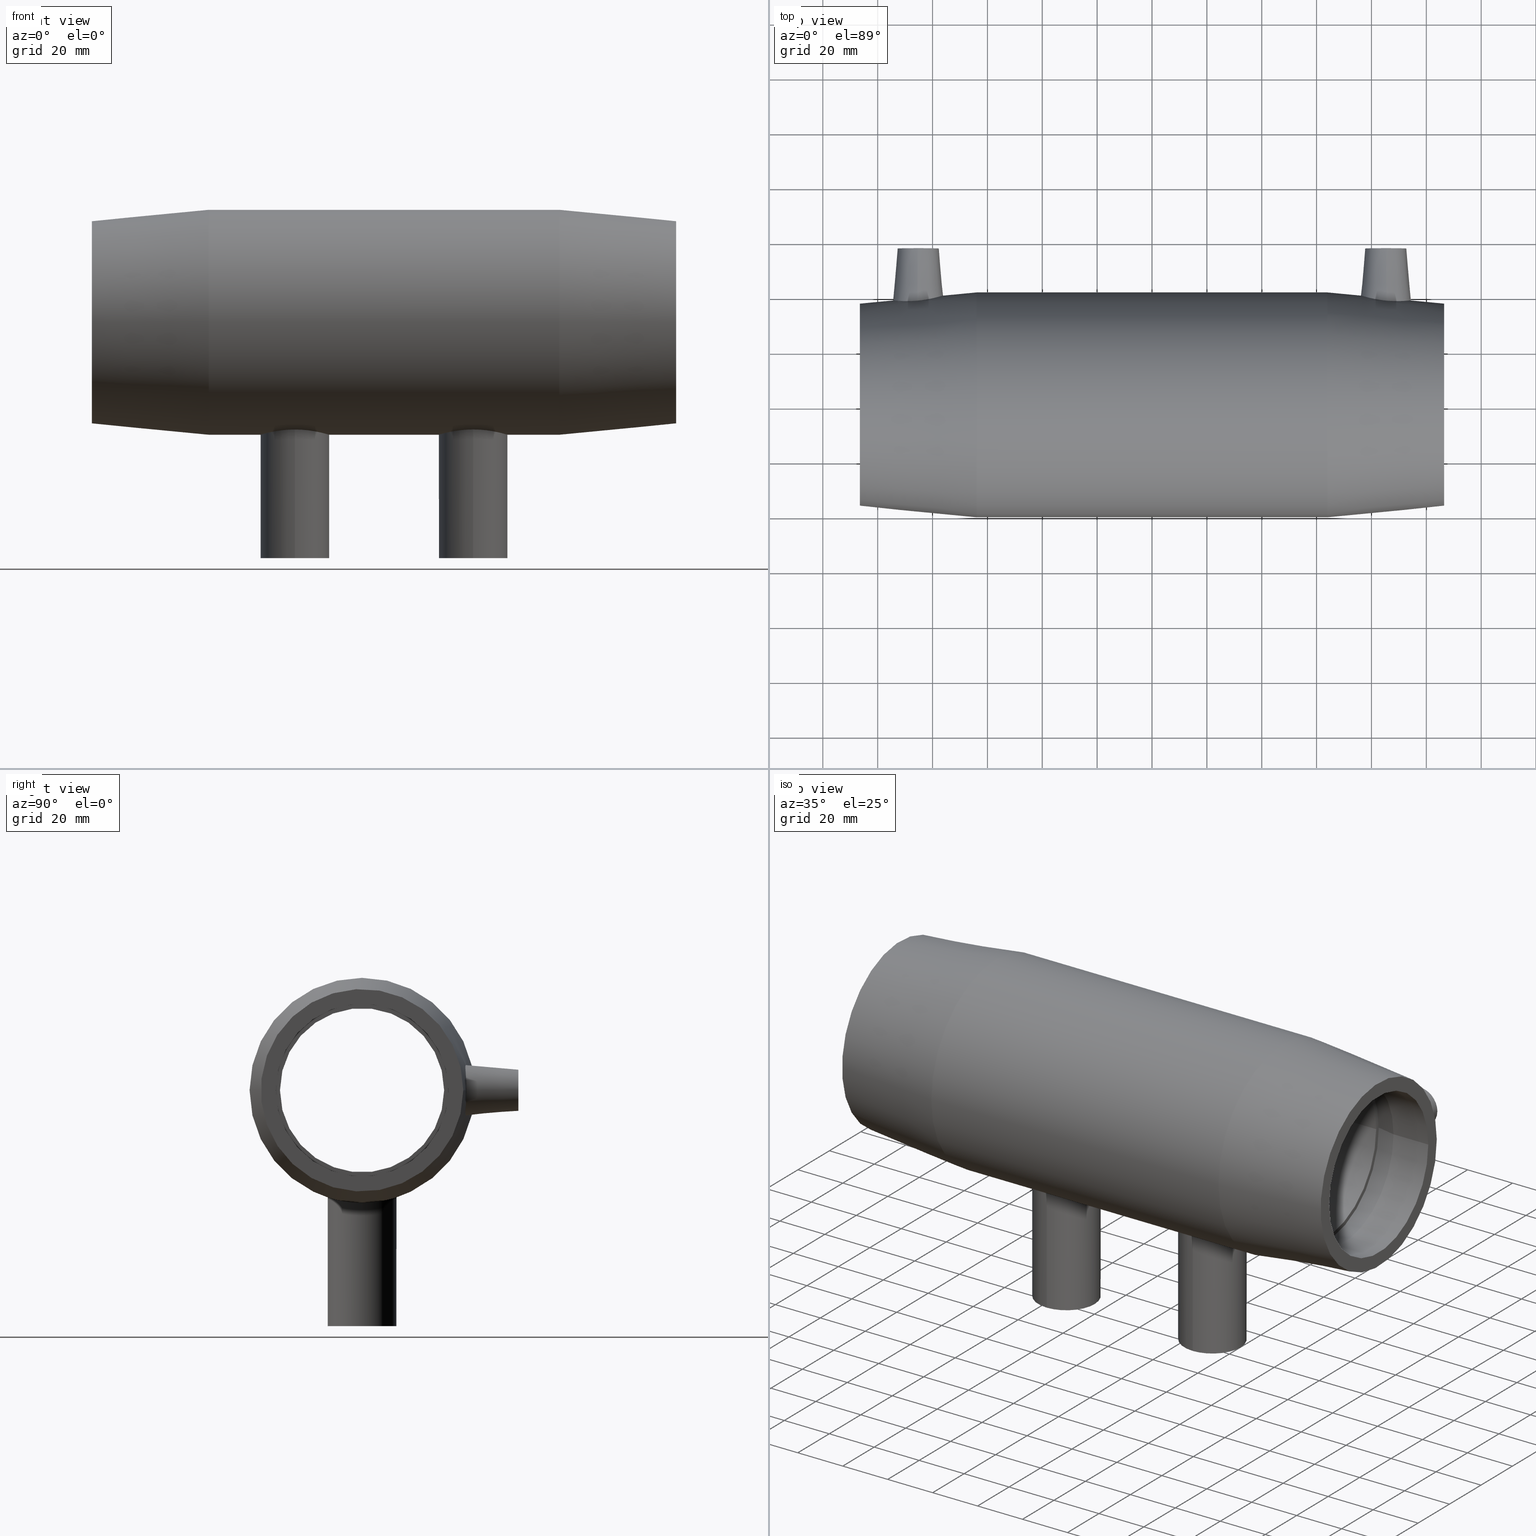
[diagram: canonical four-view strip — front | top / right | iso, engineering-drawing reading convention]
A machine part, canonical four-view strip (front | top / right | iso — engineering-drawing reading convention). The complete STEP part file that produces these views, byte-faithful:
ISO-10303-21;
HEADER;
/* Generated by software containing ST-Developer
 * from STEP Tools, Inc. (www.steptools.com) 
 */

FILE_DESCRIPTION(
/* description */ ('PLASSON REDUCING TEE WITH TWO OUTLETS 63X25X25X63'),

/* implementation_level */ '2;1');

FILE_NAME(
/* name */ 
'C:\\Dropbox\\KIMPROJECTS-Inventor\\99-16-3568-Processing\\ElectroFusi
on Fittings\\492404\\492404063025.ipt.stp',
/* time_stamp */ '2017-11-06T09:14:40+02:00',
/* author */ ('KIM'),
/* organization */ (''),
/* preprocessor_version */ 'ST-DEVELOPER v15.6',
/* originating_system */ 'Autodesk Inventor 2015',
/* authorisation */ '');

FILE_SCHEMA (('AUTOMOTIVE_DESIGN { 1 0 10303 214 3 1 1 }'));
ENDSEC;

DATA;
#10=MECHANICAL_DESIGN_GEOMETRIC_PRESENTATION_REPRESENTATION('',(#13),#911);
#11=SHAPE_REPRESENTATION_RELATIONSHIP('SRR','None',#920,#12);
#12=ADVANCED_BREP_SHAPE_REPRESENTATION($,(#14),#910);
#13=STYLED_ITEM('',(#929),#14);
#14=MANIFOLD_SOLID_BREP('Solid1',#407);
#15=CONICAL_SURFACE('',#437,7.5,5.);
#16=CONICAL_SURFACE('',#440,7.5,5.);
#17=CONICAL_SURFACE('',#444,38.95,5.49745009090748);
#18=CONICAL_SURFACE('',#450,32.3218853717908,12.);
#19=CONICAL_SURFACE('',#466,32.3218853717908,12.);
#20=CONICAL_SURFACE('',#472,38.95,5.49745009090749);
#21=PLANE('',#415);
#22=PLANE('',#418);
#23=PLANE('',#419);
#24=PLANE('',#426);
#25=PLANE('',#427);
#26=PLANE('',#434);
#27=PLANE('',#435);
#28=PLANE('',#439);
#29=PLANE('',#446);
#30=PLANE('',#452);
#31=PLANE('',#456);
#32=PLANE('',#460);
#33=PLANE('',#464);
#34=PLANE('',#470);
#35=FACE_BOUND('',#138,.T.);
#36=FACE_BOUND('',#140,.T.);
#37=FACE_BOUND('',#142,.T.);
#38=FACE_BOUND('',#144,.T.);
#39=FACE_BOUND('',#146,.T.);
#40=FACE_BOUND('',#148,.T.);
#41=FACE_BOUND('',#151,.T.);
#42=FACE_BOUND('',#153,.T.);
#43=FACE_BOUND('',#155,.T.);
#44=FACE_BOUND('',#158,.T.);
#45=FACE_BOUND('',#160,.T.);
#46=FACE_BOUND('',#162,.T.);
#47=FACE_BOUND('',#164,.T.);
#48=FACE_BOUND('',#166,.T.);
#49=FACE_BOUND('',#168,.T.);
#50=FACE_BOUND('',#170,.T.);
#51=FACE_BOUND('',#172,.T.);
#52=FACE_BOUND('',#173,.T.);
#53=FACE_BOUND('',#174,.T.);
#54=FACE_BOUND('',#176,.T.);
#55=FACE_BOUND('',#177,.T.);
#56=FACE_BOUND('',#179,.T.);
#57=FACE_BOUND('',#181,.T.);
#58=FACE_BOUND('',#183,.T.);
#59=FACE_BOUND('',#185,.T.);
#60=FACE_BOUND('',#187,.T.);
#61=FACE_BOUND('',#189,.T.);
#62=FACE_BOUND('',#191,.T.);
#63=FACE_BOUND('',#192,.T.);
#64=FACE_BOUND('',#193,.T.);
#65=FACE_BOUND('',#195,.T.);
#66=FACE_BOUND('',#197,.T.);
#67=FACE_BOUND('',#199,.T.);
#68=FACE_BOUND('',#201,.T.);
#69=FACE_BOUND('',#203,.T.);
#70=FACE_BOUND('',#205,.T.);
#71=FACE_BOUND('',#207,.T.);
#72=FACE_BOUND('',#208,.T.);
#73=CIRCLE('',#410,10.);
#74=CIRCLE('',#412,10.);
#75=CIRCLE('',#414,12.5);
#76=CIRCLE('',#417,12.5);
#77=CIRCLE('',#420,2.);
#78=CIRCLE('',#422,2.);
#79=CIRCLE('',#424,5.);
#80=CIRCLE('',#425,5.);
#81=CIRCLE('',#428,2.);
#82=CIRCLE('',#430,2.);
#83=CIRCLE('',#432,5.);
#84=CIRCLE('',#433,5.);
#85=CIRCLE('',#436,7.5);
#86=CIRCLE('',#438,7.5);
#87=CIRCLE('',#442,41.);
#88=CIRCLE('',#443,41.);
#89=CIRCLE('',#445,36.9);
#90=CIRCLE('',#447,31.5);
#91=CIRCLE('',#449,31.5);
#92=CIRCLE('',#451,33.1437707435815);
#93=CIRCLE('',#453,31.5);
#94=CIRCLE('',#455,31.5);
#95=CIRCLE('',#457,29.925);
#96=CIRCLE('',#459,29.925);
#97=CIRCLE('',#461,31.5);
#98=CIRCLE('',#463,31.5);
#99=CIRCLE('',#465,33.1437707435815);
#100=CIRCLE('',#467,31.5);
#101=CIRCLE('',#469,31.5);
#102=CIRCLE('',#471,36.9);
#103=FACE_OUTER_BOUND('',#137,.T.);
#104=FACE_OUTER_BOUND('',#139,.T.);
#105=FACE_OUTER_BOUND('',#141,.T.);
#106=FACE_OUTER_BOUND('',#143,.T.);
#107=FACE_OUTER_BOUND('',#145,.T.);
#108=FACE_OUTER_BOUND('',#147,.T.);
#109=FACE_OUTER_BOUND('',#149,.T.);
#110=FACE_OUTER_BOUND('',#150,.T.);
#111=FACE_OUTER_BOUND('',#152,.T.);
#112=FACE_OUTER_BOUND('',#154,.T.);
#113=FACE_OUTER_BOUND('',#156,.T.);
#114=FACE_OUTER_BOUND('',#157,.T.);
#115=FACE_OUTER_BOUND('',#159,.T.);
#116=FACE_OUTER_BOUND('',#161,.T.);
#117=FACE_OUTER_BOUND('',#163,.T.);
#118=FACE_OUTER_BOUND('',#165,.T.);
#119=FACE_OUTER_BOUND('',#167,.T.);
#120=FACE_OUTER_BOUND('',#169,.T.);
#121=FACE_OUTER_BOUND('',#171,.T.);
#122=FACE_OUTER_BOUND('',#175,.T.);
#123=FACE_OUTER_BOUND('',#178,.T.);
#124=FACE_OUTER_BOUND('',#180,.T.);
#125=FACE_OUTER_BOUND('',#182,.T.);
#126=FACE_OUTER_BOUND('',#184,.T.);
#127=FACE_OUTER_BOUND('',#186,.T.);
#128=FACE_OUTER_BOUND('',#188,.T.);
#129=FACE_OUTER_BOUND('',#190,.T.);
#130=FACE_OUTER_BOUND('',#194,.T.);
#131=FACE_OUTER_BOUND('',#196,.T.);
#132=FACE_OUTER_BOUND('',#198,.T.);
#133=FACE_OUTER_BOUND('',#200,.T.);
#134=FACE_OUTER_BOUND('',#202,.T.);
#135=FACE_OUTER_BOUND('',#204,.T.);
#136=FACE_OUTER_BOUND('',#206,.T.);
#137=EDGE_LOOP('',(#287));
#138=EDGE_LOOP('',(#288));
#139=EDGE_LOOP('',(#289));
#140=EDGE_LOOP('',(#290));
#141=EDGE_LOOP('',(#291));
#142=EDGE_LOOP('',(#292));
#143=EDGE_LOOP('',(#293));
#144=EDGE_LOOP('',(#294));
#145=EDGE_LOOP('',(#295));
#146=EDGE_LOOP('',(#296));
#147=EDGE_LOOP('',(#297));
#148=EDGE_LOOP('',(#298));
#149=EDGE_LOOP('',(#299));
#150=EDGE_LOOP('',(#300));
#151=EDGE_LOOP('',(#301));
#152=EDGE_LOOP('',(#302));
#153=EDGE_LOOP('',(#303));
#154=EDGE_LOOP('',(#304));
#155=EDGE_LOOP('',(#305));
#156=EDGE_LOOP('',(#306));
#157=EDGE_LOOP('',(#307));
#158=EDGE_LOOP('',(#308));
#159=EDGE_LOOP('',(#309));
#160=EDGE_LOOP('',(#310));
#161=EDGE_LOOP('',(#311));
#162=EDGE_LOOP('',(#312));
#163=EDGE_LOOP('',(#313));
#164=EDGE_LOOP('',(#314));
#165=EDGE_LOOP('',(#315));
#166=EDGE_LOOP('',(#316));
#167=EDGE_LOOP('',(#317));
#168=EDGE_LOOP('',(#318));
#169=EDGE_LOOP('',(#319));
#170=EDGE_LOOP('',(#320));
#171=EDGE_LOOP('',(#321));
#172=EDGE_LOOP('',(#322));
#173=EDGE_LOOP('',(#323));
#174=EDGE_LOOP('',(#324));
#175=EDGE_LOOP('',(#325));
#176=EDGE_LOOP('',(#326));
#177=EDGE_LOOP('',(#327));
#178=EDGE_LOOP('',(#328));
#179=EDGE_LOOP('',(#329));
#180=EDGE_LOOP('',(#330));
#181=EDGE_LOOP('',(#331));
#182=EDGE_LOOP('',(#332));
#183=EDGE_LOOP('',(#333));
#184=EDGE_LOOP('',(#334));
#185=EDGE_LOOP('',(#335));
#186=EDGE_LOOP('',(#336));
#187=EDGE_LOOP('',(#337));
#188=EDGE_LOOP('',(#338));
#189=EDGE_LOOP('',(#339));
#190=EDGE_LOOP('',(#340));
#191=EDGE_LOOP('',(#341));
#192=EDGE_LOOP('',(#342));
#193=EDGE_LOOP('',(#343));
#194=EDGE_LOOP('',(#344));
#195=EDGE_LOOP('',(#345));
#196=EDGE_LOOP('',(#346));
#197=EDGE_LOOP('',(#347));
#198=EDGE_LOOP('',(#348));
#199=EDGE_LOOP('',(#349));
#200=EDGE_LOOP('',(#350));
#201=EDGE_LOOP('',(#351));
#202=EDGE_LOOP('',(#352));
#203=EDGE_LOOP('',(#353));
#204=EDGE_LOOP('',(#354));
#205=EDGE_LOOP('',(#355));
#206=EDGE_LOOP('',(#356));
#207=EDGE_LOOP('',(#357));
#208=EDGE_LOOP('',(#358));
#209=B_SPLINE_CURVE_WITH_KNOTS('',3,(#606,#607,#608,#609,#610,#611,#612,
#613,#614,#615,#616,#617,#618,#619,#620,#621,#622,#623,#624,#625,#626,#627,
#628,#629,#630,#631,#632,#633,#634,#635,#636,#637,#638,#639),
 .UNSPECIFIED.,.T.,.F.,(4,2,2,2,2,2,2,2,2,2,2,2,2,2,2,2,4),(0.,0.379911126478915,
0.75982225295783,1.1395394310904,1.51925660922297,1.89912706346379,2.27899751770461,
2.6589677503823,3.03893798305998,3.41890821573767,3.79887844841535,4.17874890265617,
4.55861935689699,4.93830599981475,5.31799264273251,5.69793431648639,6.07787599024027),
 .UNSPECIFIED.);
#210=B_SPLINE_CURVE_WITH_KNOTS('',3,(#644,#645,#646,#647,#648,#649,#650,
#651,#652,#653,#654,#655,#656,#657,#658,#659,#660,#661,#662,#663,#664,#665,
#666,#667,#668,#669,#670,#671,#672,#673,#674,#675,#676,#677),
 .UNSPECIFIED.,.T.,.F.,(4,2,2,2,2,2,2,2,2,2,2,2,2,2,2,2,4),(0.,0.379955940291765,
0.75991188058353,1.13968972297488,1.51946756536623,1.89924540775757,2.27902325014892,
2.65897919044069,3.03893513073245,3.41889107102422,3.79884701131598,4.17862485370733,
4.55840269609868,4.93818053849003,5.31795838088138,5.69791432117314,6.07787026146491),
 .UNSPECIFIED.);
#211=B_SPLINE_CURVE_WITH_KNOTS('',3,(#684,#685,#686,#687,#688,#689,#690,
#691,#692,#693,#694,#695,#696,#697,#698,#699,#700,#701,#702,#703,#704,#705,
#706,#707,#708,#709,#710,#711,#712,#713,#714,#715,#716,#717),
 .UNSPECIFIED.,.T.,.F.,(4,2,2,2,2,2,2,2,2,2,2,2,2,2,2,2,4),(0.,0.474199388686049,
0.948398777372098,1.4223826141883,1.8963664510045,2.37050207170436,2.84463769240422,
3.31885910039788,3.79308050839154,4.2673019163852,4.74152332437886,5.21565894507872,
5.68979456577858,6.16377840259478,6.63776223941098,7.11196162809703,7.58616101678308),
 .UNSPECIFIED.);
#212=B_SPLINE_CURVE_WITH_KNOTS('',3,(#723,#724,#725,#726,#727,#728,#729,
#730,#731,#732,#733,#734,#735,#736,#737,#738,#739,#740,#741,#742,#743,#744,
#745,#746,#747,#748,#749,#750,#751,#752,#753,#754,#755,#756),
 .UNSPECIFIED.,.T.,.F.,(4,2,2,2,2,2,2,2,2,2,2,2,2,2,2,2,4),(0.,0.474210395921348,
0.948420791842696,1.42248005839744,1.89653932495219,2.37059859150694,2.84465785806169,
3.31886825398304,3.79307864990438,4.26728904582573,4.74149944174708,5.21555870830183,
5.68961797485658,6.16367724141132,6.63773650796607,7.11194690388742,7.58615729980877),
 .UNSPECIFIED.);
#213=B_SPLINE_CURVE_WITH_KNOTS('',3,(#789,#790,#791,#792,#793,#794,#795,
#796,#797,#798,#799,#800,#801,#802,#803,#804,#805,#806,#807,#808,#809,#810,
#811,#812,#813,#814,#815,#816,#817,#818,#819,#820,#821,#822),
 .UNSPECIFIED.,.T.,.F.,(4,2,2,2,2,2,2,2,2,2,2,2,2,2,2,2,4),(0.,0.35602209679449,
0.71204419358898,1.06182628477897,1.41160837596895,1.76139046715894,2.11117255834893,
2.46719465514342,2.82321675193791,3.16146447122567,3.49971219051343,3.83980134969256,
4.17989050887169,4.51997966805081,4.86006882722994,5.1983165465177,5.53656426580547),
 .UNSPECIFIED.);
#214=B_SPLINE_CURVE_WITH_KNOTS('',3,(#826,#827,#828,#829,#830,#831,#832,
#833,#834,#835,#836,#837,#838,#839,#840,#841,#842,#843,#844,#845,#846,#847,
#848,#849,#850,#851,#852,#853,#854,#855,#856,#857,#858,#859),
 .UNSPECIFIED.,.T.,.F.,(4,2,2,2,2,2,2,2,2,2,2,2,2,2,2,2,4),(0.,0.338247719287762,
0.676495438575523,1.01658459775465,1.35667375693378,1.69676291611291,2.03685207529204,
2.3750997945798,2.71334751386756,3.06936961066205,3.42539170745654,3.77517379864653,
4.12495588983651,4.4747379810265,4.82452007221649,5.18054216901098,5.53656426580547),
 .UNSPECIFIED.);
#215=VERTEX_POINT('',#605);
#216=VERTEX_POINT('',#640);
#217=VERTEX_POINT('',#643);
#218=VERTEX_POINT('',#678);
#219=VERTEX_POINT('',#681);
#220=VERTEX_POINT('',#683);
#221=VERTEX_POINT('',#720);
#222=VERTEX_POINT('',#722);
#223=VERTEX_POINT('',#759);
#224=VERTEX_POINT('',#762);
#225=VERTEX_POINT('',#765);
#226=VERTEX_POINT('',#767);
#227=VERTEX_POINT('',#771);
#228=VERTEX_POINT('',#774);
#229=VERTEX_POINT('',#777);
#230=VERTEX_POINT('',#779);
#231=VERTEX_POINT('',#783);
#232=VERTEX_POINT('',#786);
#233=VERTEX_POINT('',#788);
#234=VERTEX_POINT('',#825);
#235=VERTEX_POINT('',#861);
#236=VERTEX_POINT('',#863);
#237=VERTEX_POINT('',#866);
#238=VERTEX_POINT('',#869);
#239=VERTEX_POINT('',#872);
#240=VERTEX_POINT('',#875);
#241=VERTEX_POINT('',#878);
#242=VERTEX_POINT('',#881);
#243=VERTEX_POINT('',#884);
#244=VERTEX_POINT('',#887);
#245=VERTEX_POINT('',#890);
#246=VERTEX_POINT('',#893);
#247=VERTEX_POINT('',#896);
#248=VERTEX_POINT('',#899);
#249=VERTEX_POINT('',#902);
#250=VERTEX_POINT('',#905);
#251=EDGE_CURVE('',#215,#215,#209,.T.);
#252=EDGE_CURVE('',#216,#216,#73,.T.);
#253=EDGE_CURVE('',#217,#217,#210,.T.);
#254=EDGE_CURVE('',#218,#218,#74,.T.);
#255=EDGE_CURVE('',#219,#219,#75,.T.);
#256=EDGE_CURVE('',#220,#220,#211,.T.);
#257=EDGE_CURVE('',#221,#221,#76,.T.);
#258=EDGE_CURVE('',#222,#222,#212,.T.);
#259=EDGE_CURVE('',#223,#223,#77,.T.);
#260=EDGE_CURVE('',#224,#224,#78,.T.);
#261=EDGE_CURVE('',#225,#225,#79,.T.);
#262=EDGE_CURVE('',#226,#226,#80,.T.);
#263=EDGE_CURVE('',#227,#227,#81,.T.);
#264=EDGE_CURVE('',#228,#228,#82,.T.);
#265=EDGE_CURVE('',#229,#229,#83,.T.);
#266=EDGE_CURVE('',#230,#230,#84,.T.);
#267=EDGE_CURVE('',#231,#231,#85,.T.);
#268=EDGE_CURVE('',#232,#232,#86,.T.);
#269=EDGE_CURVE('',#233,#233,#213,.T.);
#270=EDGE_CURVE('',#234,#234,#214,.T.);
#271=EDGE_CURVE('',#235,#235,#87,.T.);
#272=EDGE_CURVE('',#236,#236,#88,.T.);
#273=EDGE_CURVE('',#237,#237,#89,.T.);
#274=EDGE_CURVE('',#238,#238,#90,.T.);
#275=EDGE_CURVE('',#239,#239,#91,.T.);
#276=EDGE_CURVE('',#240,#240,#92,.T.);
#277=EDGE_CURVE('',#241,#241,#93,.T.);
#278=EDGE_CURVE('',#242,#242,#94,.T.);
#279=EDGE_CURVE('',#243,#243,#95,.T.);
#280=EDGE_CURVE('',#244,#244,#96,.T.);
#281=EDGE_CURVE('',#245,#245,#97,.T.);
#282=EDGE_CURVE('',#246,#246,#98,.T.);
#283=EDGE_CURVE('',#247,#247,#99,.T.);
#284=EDGE_CURVE('',#248,#248,#100,.T.);
#285=EDGE_CURVE('',#249,#249,#101,.T.);
#286=EDGE_CURVE('',#250,#250,#102,.T.);
#287=ORIENTED_EDGE('',*,*,#251,.F.);
#288=ORIENTED_EDGE('',*,*,#252,.F.);
#289=ORIENTED_EDGE('',*,*,#253,.F.);
#290=ORIENTED_EDGE('',*,*,#254,.F.);
#291=ORIENTED_EDGE('',*,*,#255,.F.);
#292=ORIENTED_EDGE('',*,*,#256,.F.);
#293=ORIENTED_EDGE('',*,*,#255,.T.);
#294=ORIENTED_EDGE('',*,*,#252,.T.);
#295=ORIENTED_EDGE('',*,*,#257,.F.);
#296=ORIENTED_EDGE('',*,*,#258,.F.);
#297=ORIENTED_EDGE('',*,*,#257,.T.);
#298=ORIENTED_EDGE('',*,*,#254,.T.);
#299=ORIENTED_EDGE('',*,*,#259,.F.);
#300=ORIENTED_EDGE('',*,*,#259,.T.);
#301=ORIENTED_EDGE('',*,*,#260,.F.);
#302=ORIENTED_EDGE('',*,*,#261,.F.);
#303=ORIENTED_EDGE('',*,*,#262,.F.);
#304=ORIENTED_EDGE('',*,*,#261,.T.);
#305=ORIENTED_EDGE('',*,*,#260,.T.);
#306=ORIENTED_EDGE('',*,*,#263,.F.);
#307=ORIENTED_EDGE('',*,*,#263,.T.);
#308=ORIENTED_EDGE('',*,*,#264,.T.);
#309=ORIENTED_EDGE('',*,*,#265,.T.);
#310=ORIENTED_EDGE('',*,*,#266,.F.);
#311=ORIENTED_EDGE('',*,*,#265,.F.);
#312=ORIENTED_EDGE('',*,*,#264,.F.);
#313=ORIENTED_EDGE('',*,*,#267,.F.);
#314=ORIENTED_EDGE('',*,*,#266,.T.);
#315=ORIENTED_EDGE('',*,*,#268,.F.);
#316=ORIENTED_EDGE('',*,*,#269,.F.);
#317=ORIENTED_EDGE('',*,*,#268,.T.);
#318=ORIENTED_EDGE('',*,*,#262,.T.);
#319=ORIENTED_EDGE('',*,*,#267,.T.);
#320=ORIENTED_EDGE('',*,*,#270,.F.);
#321=ORIENTED_EDGE('',*,*,#271,.F.);
#322=ORIENTED_EDGE('',*,*,#256,.T.);
#323=ORIENTED_EDGE('',*,*,#258,.T.);
#324=ORIENTED_EDGE('',*,*,#272,.T.);
#325=ORIENTED_EDGE('',*,*,#273,.F.);
#326=ORIENTED_EDGE('',*,*,#269,.T.);
#327=ORIENTED_EDGE('',*,*,#271,.T.);
#328=ORIENTED_EDGE('',*,*,#273,.T.);
#329=ORIENTED_EDGE('',*,*,#274,.F.);
#330=ORIENTED_EDGE('',*,*,#275,.F.);
#331=ORIENTED_EDGE('',*,*,#274,.T.);
#332=ORIENTED_EDGE('',*,*,#276,.F.);
#333=ORIENTED_EDGE('',*,*,#275,.T.);
#334=ORIENTED_EDGE('',*,*,#276,.T.);
#335=ORIENTED_EDGE('',*,*,#277,.F.);
#336=ORIENTED_EDGE('',*,*,#278,.F.);
#337=ORIENTED_EDGE('',*,*,#277,.T.);
#338=ORIENTED_EDGE('',*,*,#278,.T.);
#339=ORIENTED_EDGE('',*,*,#279,.F.);
#340=ORIENTED_EDGE('',*,*,#280,.F.);
#341=ORIENTED_EDGE('',*,*,#251,.T.);
#342=ORIENTED_EDGE('',*,*,#253,.T.);
#343=ORIENTED_EDGE('',*,*,#279,.T.);
#344=ORIENTED_EDGE('',*,*,#281,.F.);
#345=ORIENTED_EDGE('',*,*,#280,.T.);
#346=ORIENTED_EDGE('',*,*,#282,.F.);
#347=ORIENTED_EDGE('',*,*,#281,.T.);
#348=ORIENTED_EDGE('',*,*,#283,.F.);
#349=ORIENTED_EDGE('',*,*,#282,.T.);
#350=ORIENTED_EDGE('',*,*,#284,.F.);
#351=ORIENTED_EDGE('',*,*,#283,.T.);
#352=ORIENTED_EDGE('',*,*,#285,.F.);
#353=ORIENTED_EDGE('',*,*,#284,.T.);
#354=ORIENTED_EDGE('',*,*,#286,.F.);
#355=ORIENTED_EDGE('',*,*,#285,.T.);
#356=ORIENTED_EDGE('',*,*,#272,.F.);
#357=ORIENTED_EDGE('',*,*,#270,.T.);
#358=ORIENTED_EDGE('',*,*,#286,.T.);
#359=CYLINDRICAL_SURFACE('',#409,10.);
#360=CYLINDRICAL_SURFACE('',#411,10.);
#361=CYLINDRICAL_SURFACE('',#413,12.5);
#362=CYLINDRICAL_SURFACE('',#416,12.5);
#363=CYLINDRICAL_SURFACE('',#421,2.);
#364=CYLINDRICAL_SURFACE('',#423,5.);
#365=CYLINDRICAL_SURFACE('',#429,2.);
#366=CYLINDRICAL_SURFACE('',#431,5.);
#367=CYLINDRICAL_SURFACE('',#441,41.);
#368=CYLINDRICAL_SURFACE('',#448,31.5);
#369=CYLINDRICAL_SURFACE('',#454,31.5);
#370=CYLINDRICAL_SURFACE('',#458,29.925);
#371=CYLINDRICAL_SURFACE('',#462,31.5);
#372=CYLINDRICAL_SURFACE('',#468,31.5);
#373=ADVANCED_FACE('',(#103,#35),#359,.F.);
#374=ADVANCED_FACE('',(#104,#36),#360,.F.);
#375=ADVANCED_FACE('',(#105,#37),#361,.T.);
#376=ADVANCED_FACE('',(#106,#38),#21,.F.);
#377=ADVANCED_FACE('',(#107,#39),#362,.T.);
#378=ADVANCED_FACE('',(#108,#40),#22,.F.);
#379=ADVANCED_FACE('',(#109),#23,.F.);
#380=ADVANCED_FACE('',(#110,#41),#363,.T.);
#381=ADVANCED_FACE('',(#111,#42),#364,.F.);
#382=ADVANCED_FACE('',(#112,#43),#24,.F.);
#383=ADVANCED_FACE('',(#113),#25,.T.);
#384=ADVANCED_FACE('',(#114,#44),#365,.T.);
#385=ADVANCED_FACE('',(#115,#45),#366,.F.);
#386=ADVANCED_FACE('',(#116,#46),#26,.T.);
#387=ADVANCED_FACE('',(#117,#47),#27,.T.);
#388=ADVANCED_FACE('',(#118,#48),#15,.T.);
#389=ADVANCED_FACE('',(#119,#49),#28,.F.);
#390=ADVANCED_FACE('',(#120,#50),#16,.T.);
#391=ADVANCED_FACE('',(#121,#51,#52,#53),#367,.T.);
#392=ADVANCED_FACE('',(#122,#54,#55),#17,.T.);
#393=ADVANCED_FACE('',(#123,#56),#29,.T.);
#394=ADVANCED_FACE('',(#124,#57),#368,.F.);
#395=ADVANCED_FACE('',(#125,#58),#18,.F.);
#396=ADVANCED_FACE('',(#126,#59),#30,.T.);
#397=ADVANCED_FACE('',(#127,#60),#369,.F.);
#398=ADVANCED_FACE('',(#128,#61),#31,.T.);
#399=ADVANCED_FACE('',(#129,#62,#63,#64),#370,.F.);
#400=ADVANCED_FACE('',(#130,#65),#32,.T.);
#401=ADVANCED_FACE('',(#131,#66),#371,.F.);
#402=ADVANCED_FACE('',(#132,#67),#33,.T.);
#403=ADVANCED_FACE('',(#133,#68),#19,.F.);
#404=ADVANCED_FACE('',(#134,#69),#372,.F.);
#405=ADVANCED_FACE('',(#135,#70),#34,.T.);
#406=ADVANCED_FACE('',(#136,#71,#72),#20,.T.);
#407=CLOSED_SHELL('',(#373,#374,#375,#376,#377,#378,#379,#380,#381,#382,
#383,#384,#385,#386,#387,#388,#389,#390,#391,#392,#393,#394,#395,#396,#397,
#398,#399,#400,#401,#402,#403,#404,#405,#406));
#408=AXIS2_PLACEMENT_3D('placement',#603,#473,#474);
#409=AXIS2_PLACEMENT_3D('',#604,#475,#476);
#410=AXIS2_PLACEMENT_3D('',#641,#477,#478);
#411=AXIS2_PLACEMENT_3D('',#642,#479,#480);
#412=AXIS2_PLACEMENT_3D('',#679,#481,#482);
#413=AXIS2_PLACEMENT_3D('',#680,#483,#484);
#414=AXIS2_PLACEMENT_3D('',#682,#485,#486);
#415=AXIS2_PLACEMENT_3D('',#718,#487,#488);
#416=AXIS2_PLACEMENT_3D('',#719,#489,#490);
#417=AXIS2_PLACEMENT_3D('',#721,#491,#492);
#418=AXIS2_PLACEMENT_3D('',#757,#493,#494);
#419=AXIS2_PLACEMENT_3D('',#758,#495,#496);
#420=AXIS2_PLACEMENT_3D('',#760,#497,#498);
#421=AXIS2_PLACEMENT_3D('',#761,#499,#500);
#422=AXIS2_PLACEMENT_3D('',#763,#501,#502);
#423=AXIS2_PLACEMENT_3D('',#764,#503,#504);
#424=AXIS2_PLACEMENT_3D('',#766,#505,#506);
#425=AXIS2_PLACEMENT_3D('',#768,#507,#508);
#426=AXIS2_PLACEMENT_3D('',#769,#509,#510);
#427=AXIS2_PLACEMENT_3D('',#770,#511,#512);
#428=AXIS2_PLACEMENT_3D('',#772,#513,#514);
#429=AXIS2_PLACEMENT_3D('',#773,#515,#516);
#430=AXIS2_PLACEMENT_3D('',#775,#517,#518);
#431=AXIS2_PLACEMENT_3D('',#776,#519,#520);
#432=AXIS2_PLACEMENT_3D('',#778,#521,#522);
#433=AXIS2_PLACEMENT_3D('',#780,#523,#524);
#434=AXIS2_PLACEMENT_3D('',#781,#525,#526);
#435=AXIS2_PLACEMENT_3D('',#782,#527,#528);
#436=AXIS2_PLACEMENT_3D('',#784,#529,#530);
#437=AXIS2_PLACEMENT_3D('',#785,#531,#532);
#438=AXIS2_PLACEMENT_3D('',#787,#533,#534);
#439=AXIS2_PLACEMENT_3D('',#823,#535,#536);
#440=AXIS2_PLACEMENT_3D('',#824,#537,#538);
#441=AXIS2_PLACEMENT_3D('',#860,#539,#540);
#442=AXIS2_PLACEMENT_3D('',#862,#541,#542);
#443=AXIS2_PLACEMENT_3D('',#864,#543,#544);
#444=AXIS2_PLACEMENT_3D('',#865,#545,#546);
#445=AXIS2_PLACEMENT_3D('',#867,#547,#548);
#446=AXIS2_PLACEMENT_3D('',#868,#549,#550);
#447=AXIS2_PLACEMENT_3D('',#870,#551,#552);
#448=AXIS2_PLACEMENT_3D('',#871,#553,#554);
#449=AXIS2_PLACEMENT_3D('',#873,#555,#556);
#450=AXIS2_PLACEMENT_3D('',#874,#557,#558);
#451=AXIS2_PLACEMENT_3D('',#876,#559,#560);
#452=AXIS2_PLACEMENT_3D('',#877,#561,#562);
#453=AXIS2_PLACEMENT_3D('',#879,#563,#564);
#454=AXIS2_PLACEMENT_3D('',#880,#565,#566);
#455=AXIS2_PLACEMENT_3D('',#882,#567,#568);
#456=AXIS2_PLACEMENT_3D('',#883,#569,#570);
#457=AXIS2_PLACEMENT_3D('',#885,#571,#572);
#458=AXIS2_PLACEMENT_3D('',#886,#573,#574);
#459=AXIS2_PLACEMENT_3D('',#888,#575,#576);
#460=AXIS2_PLACEMENT_3D('',#889,#577,#578);
#461=AXIS2_PLACEMENT_3D('',#891,#579,#580);
#462=AXIS2_PLACEMENT_3D('',#892,#581,#582);
#463=AXIS2_PLACEMENT_3D('',#894,#583,#584);
#464=AXIS2_PLACEMENT_3D('',#895,#585,#586);
#465=AXIS2_PLACEMENT_3D('',#897,#587,#588);
#466=AXIS2_PLACEMENT_3D('',#898,#589,#590);
#467=AXIS2_PLACEMENT_3D('',#900,#591,#592);
#468=AXIS2_PLACEMENT_3D('',#901,#593,#594);
#469=AXIS2_PLACEMENT_3D('',#903,#595,#596);
#470=AXIS2_PLACEMENT_3D('',#904,#597,#598);
#471=AXIS2_PLACEMENT_3D('',#906,#599,#600);
#472=AXIS2_PLACEMENT_3D('',#907,#601,#602);
#473=DIRECTION('axis',(0.,0.,1.));
#474=DIRECTION('refdir',(1.,0.,0.));
#475=DIRECTION('center_axis',(0.,0.,1.));
#476=DIRECTION('ref_axis',(1.,0.,0.));
#477=DIRECTION('center_axis',(0.,0.,1.));
#478=DIRECTION('ref_axis',(1.,0.,0.));
#479=DIRECTION('center_axis',(0.,0.,1.));
#480=DIRECTION('ref_axis',(1.,0.,0.));
#481=DIRECTION('center_axis',(0.,0.,1.));
#482=DIRECTION('ref_axis',(1.,0.,0.));
#483=DIRECTION('center_axis',(0.,0.,1.));
#484=DIRECTION('ref_axis',(-1.,0.,0.));
#485=DIRECTION('center_axis',(0.,0.,-1.));
#486=DIRECTION('ref_axis',(-1.,0.,0.));
#487=DIRECTION('center_axis',(0.,0.,1.));
#488=DIRECTION('ref_axis',(1.,0.,0.));
#489=DIRECTION('center_axis',(0.,0.,1.));
#490=DIRECTION('ref_axis',(-1.,0.,0.));
#491=DIRECTION('center_axis',(0.,0.,-1.));
#492=DIRECTION('ref_axis',(-1.,0.,0.));
#493=DIRECTION('center_axis',(0.,0.,1.));
#494=DIRECTION('ref_axis',(1.,0.,0.));
#495=DIRECTION('center_axis',(0.,-1.,0.));
#496=DIRECTION('ref_axis',(0.,0.,1.));
#497=DIRECTION('center_axis',(0.,-1.,0.));
#498=DIRECTION('ref_axis',(1.,0.,0.));
#499=DIRECTION('center_axis',(0.,1.,0.));
#500=DIRECTION('ref_axis',(1.,0.,0.));
#501=DIRECTION('center_axis',(0.,-1.,0.));
#502=DIRECTION('ref_axis',(1.,0.,0.));
#503=DIRECTION('center_axis',(0.,1.,0.));
#504=DIRECTION('ref_axis',(1.,0.,0.));
#505=DIRECTION('center_axis',(0.,1.,0.));
#506=DIRECTION('ref_axis',(1.,0.,0.));
#507=DIRECTION('center_axis',(0.,-1.,0.));
#508=DIRECTION('ref_axis',(1.,0.,0.));
#509=DIRECTION('center_axis',(0.,-1.,0.));
#510=DIRECTION('ref_axis',(0.,0.,1.));
#511=DIRECTION('center_axis',(0.,1.,0.));
#512=DIRECTION('ref_axis',(0.,0.,1.));
#513=DIRECTION('center_axis',(0.,-1.,0.));
#514=DIRECTION('ref_axis',(-1.,0.,0.));
#515=DIRECTION('center_axis',(0.,-1.,0.));
#516=DIRECTION('ref_axis',(-1.,0.,0.));
#517=DIRECTION('center_axis',(0.,1.,0.));
#518=DIRECTION('ref_axis',(-1.,0.,0.));
#519=DIRECTION('center_axis',(0.,-1.,0.));
#520=DIRECTION('ref_axis',(-1.,0.,0.));
#521=DIRECTION('center_axis',(0.,-1.,0.));
#522=DIRECTION('ref_axis',(-1.,0.,0.));
#523=DIRECTION('center_axis',(0.,-1.,0.));
#524=DIRECTION('ref_axis',(-1.,0.,0.));
#525=DIRECTION('center_axis',(0.,1.,0.));
#526=DIRECTION('ref_axis',(0.,0.,1.));
#527=DIRECTION('center_axis',(0.,1.,0.));
#528=DIRECTION('ref_axis',(0.,0.,1.));
#529=DIRECTION('center_axis',(0.,-1.,0.));
#530=DIRECTION('ref_axis',(1.,0.,0.));
#531=DIRECTION('center_axis',(0.,-1.,0.));
#532=DIRECTION('ref_axis',(-1.,0.,0.));
#533=DIRECTION('center_axis',(0.,1.,0.));
#534=DIRECTION('ref_axis',(-1.,0.,0.));
#535=DIRECTION('center_axis',(0.,-1.,0.));
#536=DIRECTION('ref_axis',(0.,0.,1.));
#537=DIRECTION('center_axis',(0.,-1.,0.));
#538=DIRECTION('ref_axis',(1.,0.,0.));
#539=DIRECTION('center_axis',(1.,0.,0.));
#540=DIRECTION('ref_axis',(0.,1.,0.));
#541=DIRECTION('center_axis',(1.,0.,0.));
#542=DIRECTION('ref_axis',(0.,0.,-1.));
#543=DIRECTION('center_axis',(1.,0.,0.));
#544=DIRECTION('ref_axis',(0.,0.,-1.));
#545=DIRECTION('center_axis',(-1.,0.,0.));
#546=DIRECTION('ref_axis',(0.,1.,0.));
#547=DIRECTION('center_axis',(1.,0.,0.));
#548=DIRECTION('ref_axis',(0.,0.,-1.));
#549=DIRECTION('center_axis',(1.,0.,0.));
#550=DIRECTION('ref_axis',(0.,0.,-1.));
#551=DIRECTION('center_axis',(1.,0.,0.));
#552=DIRECTION('ref_axis',(0.,0.,-1.));
#553=DIRECTION('center_axis',(1.,0.,0.));
#554=DIRECTION('ref_axis',(0.,1.,0.));
#555=DIRECTION('center_axis',(1.,0.,0.));
#556=DIRECTION('ref_axis',(0.,0.,-1.));
#557=DIRECTION('center_axis',(-1.,0.,0.));
#558=DIRECTION('ref_axis',(0.,1.,0.));
#559=DIRECTION('center_axis',(1.,0.,0.));
#560=DIRECTION('ref_axis',(0.,0.,-1.));
#561=DIRECTION('center_axis',(1.,0.,0.));
#562=DIRECTION('ref_axis',(0.,0.,-1.));
#563=DIRECTION('center_axis',(1.,0.,0.));
#564=DIRECTION('ref_axis',(0.,0.,-1.));
#565=DIRECTION('center_axis',(1.,0.,0.));
#566=DIRECTION('ref_axis',(0.,1.,0.));
#567=DIRECTION('center_axis',(1.,0.,0.));
#568=DIRECTION('ref_axis',(0.,0.,-1.));
#569=DIRECTION('center_axis',(1.,0.,0.));
#570=DIRECTION('ref_axis',(0.,0.,-1.));
#571=DIRECTION('center_axis',(1.,0.,0.));
#572=DIRECTION('ref_axis',(0.,0.,-1.));
#573=DIRECTION('center_axis',(1.,0.,0.));
#574=DIRECTION('ref_axis',(0.,1.,0.));
#575=DIRECTION('center_axis',(1.,0.,0.));
#576=DIRECTION('ref_axis',(0.,0.,-1.));
#577=DIRECTION('center_axis',(-1.,0.,0.));
#578=DIRECTION('ref_axis',(0.,0.,1.));
#579=DIRECTION('center_axis',(1.,0.,0.));
#580=DIRECTION('ref_axis',(0.,0.,-1.));
#581=DIRECTION('center_axis',(1.,0.,0.));
#582=DIRECTION('ref_axis',(0.,1.,0.));
#583=DIRECTION('center_axis',(1.,0.,0.));
#584=DIRECTION('ref_axis',(0.,0.,-1.));
#585=DIRECTION('center_axis',(-1.,0.,0.));
#586=DIRECTION('ref_axis',(0.,0.,1.));
#587=DIRECTION('center_axis',(1.,0.,0.));
#588=DIRECTION('ref_axis',(0.,0.,-1.));
#589=DIRECTION('center_axis',(1.,0.,0.));
#590=DIRECTION('ref_axis',(0.,1.,0.));
#591=DIRECTION('center_axis',(1.,0.,0.));
#592=DIRECTION('ref_axis',(0.,0.,-1.));
#593=DIRECTION('center_axis',(1.,0.,0.));
#594=DIRECTION('ref_axis',(0.,1.,0.));
#595=DIRECTION('center_axis',(1.,0.,0.));
#596=DIRECTION('ref_axis',(0.,0.,-1.));
#597=DIRECTION('center_axis',(-1.,0.,0.));
#598=DIRECTION('ref_axis',(0.,0.,1.));
#599=DIRECTION('center_axis',(1.,0.,0.));
#600=DIRECTION('ref_axis',(0.,0.,-1.));
#601=DIRECTION('center_axis',(1.,0.,0.));
#602=DIRECTION('ref_axis',(0.,1.,0.));
#603=CARTESIAN_POINT('',(0.,0.,0.));
#604=CARTESIAN_POINT('Origin',(-32.5,0.0537321586506889,-86.));
#605=CARTESIAN_POINT('',(-32.5,-9.94626784134931,-28.2237024684597));
#606=CARTESIAN_POINT('Ctrl Pts',(-32.5,-9.94626784134931,-28.2237024684597));
#607=CARTESIAN_POINT('Ctrl Pts',(-33.7663704215964,-9.94626784134931,-28.2237024684597));
#608=CARTESIAN_POINT('Ctrl Pts',(-35.1098803069415,-9.69120822191246,-28.3173994806882));
#609=CARTESIAN_POINT('Ctrl Pts',(-37.5704024643055,-8.66787171123345,-28.6472095674615));
#610=CARTESIAN_POINT('Ctrl Pts',(-38.6883575940194,-7.90004587106091,-28.8776629412966));
#611=CARTESIAN_POINT('Ctrl Pts',(-40.4533273975107,-6.13507606756952,-29.3034151888193));
#612=CARTESIAN_POINT('Ctrl Pts',(-41.2215015513879,-5.01693796360269,-29.5275286393311));
#613=CARTESIAN_POINT('Ctrl Pts',(-42.2450933704242,-2.55575865449979,-29.841459611524));
#614=CARTESIAN_POINT('Ctrl Pts',(-42.5,-1.21198972808471,-29.9272244446202));
#615=CARTESIAN_POINT('Ctrl Pts',(-42.5,1.31996496492331,-29.9226781585526));
#616=CARTESIAN_POINT('Ctrl Pts',(-42.2449126472697,2.66391972668421,-29.8320230717616));
#617=CARTESIAN_POINT('Ctrl Pts',(-41.2211018398113,5.12510100601329,-29.5089716622805));
#618=CARTESIAN_POINT('Ctrl Pts',(-40.4529007938272,6.24307379399433,-29.2806185144116));
#619=CARTESIAN_POINT('Ctrl Pts',(-38.6881467910937,8.00761410594181,-28.8480353013747));
#620=CARTESIAN_POINT('Ctrl Pts',(-37.5704265192876,8.77530565414033,-28.6144947168373));
#621=CARTESIAN_POINT('Ctrl Pts',(-35.1101170155104,9.79859445922397,-28.2804324259136));
#622=CARTESIAN_POINT('Ctrl Pts',(-33.7665674422589,10.0537321586507,-28.1856008394732));
#623=CARTESIAN_POINT('Ctrl Pts',(-31.233432557741,10.0537321586507,-28.1856008394732));
#624=CARTESIAN_POINT('Ctrl Pts',(-29.8898829844896,9.79859445922397,-28.2804324259136));
#625=CARTESIAN_POINT('Ctrl Pts',(-27.4295734807124,8.77530565414032,-28.6144947168373));
#626=CARTESIAN_POINT('Ctrl Pts',(-26.3118532089063,8.00761410594181,-28.8480353013747));
#627=CARTESIAN_POINT('Ctrl Pts',(-24.5470992061728,6.24307379399433,-29.2806185144116));
#628=CARTESIAN_POINT('Ctrl Pts',(-23.7788981601886,5.12510100601328,-29.5089716622805));
#629=CARTESIAN_POINT('Ctrl Pts',(-22.7550873527303,2.6639197266842,-29.8320230717616));
#630=CARTESIAN_POINT('Ctrl Pts',(-22.5,1.31996496492331,-29.9226781585526));
#631=CARTESIAN_POINT('Ctrl Pts',(-22.5,-1.21188794419942,-29.9272242618607));
#632=CARTESIAN_POINT('Ctrl Pts',(-22.7548661135508,-2.55555689570215,-29.8414736517349));
#633=CARTESIAN_POINT('Ctrl Pts',(-23.7783080924007,-5.0165845771571,-29.5275854069617));
#634=CARTESIAN_POINT('Ctrl Pts',(-24.5463729855357,-6.13467080586332,-29.3034993596454));
#635=CARTESIAN_POINT('Ctrl Pts',(-26.3112373573754,-7.89974648747355,-28.8777487501029));
#636=CARTESIAN_POINT('Ctrl Pts',(-27.4292444493583,-8.66768150656645,-28.6472685802086));
#637=CARTESIAN_POINT('Ctrl Pts',(-29.8899180794431,-9.691167715685,-28.3174148230616));
#638=CARTESIAN_POINT('Ctrl Pts',(-31.2335277541537,-9.94626784134931,-28.2237024684597));
#639=CARTESIAN_POINT('Ctrl Pts',(-32.5,-9.94626784134931,-28.2237024684597));
#640=CARTESIAN_POINT('',(-42.5,0.0537321586506901,-86.));
#641=CARTESIAN_POINT('Origin',(-32.5,0.0537321586506889,-86.));
#642=CARTESIAN_POINT('Origin',(32.5,0.,-86.));
#643=CARTESIAN_POINT('',(32.5,-10.,-28.2047092699074));
#644=CARTESIAN_POINT('Ctrl Pts',(32.5,-10.,-28.2047092699074));
#645=CARTESIAN_POINT('Ctrl Pts',(31.2334801990274,-10.,-28.2047092699074));
#646=CARTESIAN_POINT('Ctrl Pts',(29.8899002994399,-9.74488110240639,-28.2989806179502));
#647=CARTESIAN_POINT('Ctrl Pts',(27.4294077614799,-8.72149296878013,-28.6309370762041));
#648=CARTESIAN_POINT('Ctrl Pts',(26.3115434119696,-7.95367903570055,-28.8629465687562));
#649=CARTESIAN_POINT('Ctrl Pts',(24.5467346733356,-6.18887029706659,-29.2921116682667));
#650=CARTESIAN_POINT('Ctrl Pts',(23.7786022963144,-5.0708412602393,-29.518330019549));
#651=CARTESIAN_POINT('Ctrl Pts',(22.7549766120105,-2.60973762842121,-29.8367978796903));
#652=CARTESIAN_POINT('Ctrl Pts',(22.5,-1.26592614130449,-29.925));
#653=CARTESIAN_POINT('Ctrl Pts',(22.5,1.26592614130449,-29.925));
#654=CARTESIAN_POINT('Ctrl Pts',(22.7549766120105,2.60973762842121,-29.8367978796903));
#655=CARTESIAN_POINT('Ctrl Pts',(23.7786022963144,5.0708412602393,-29.518330019549));
#656=CARTESIAN_POINT('Ctrl Pts',(24.5467346733356,6.18887029706659,-29.2921116682667));
#657=CARTESIAN_POINT('Ctrl Pts',(26.3115434119696,7.95367903570054,-28.8629465687562));
#658=CARTESIAN_POINT('Ctrl Pts',(27.4294077614799,8.72149296878012,-28.6309370762041));
#659=CARTESIAN_POINT('Ctrl Pts',(29.8899002994399,9.74488110240639,-28.2989806179502));
#660=CARTESIAN_POINT('Ctrl Pts',(31.2334801990274,10.,-28.2047092699074));
#661=CARTESIAN_POINT('Ctrl Pts',(33.7665198009725,10.,-28.2047092699074));
#662=CARTESIAN_POINT('Ctrl Pts',(35.1100997005601,9.74488110240639,-28.2989806179502));
#663=CARTESIAN_POINT('Ctrl Pts',(37.5705922385201,8.72149296878013,-28.6309370762041));
#664=CARTESIAN_POINT('Ctrl Pts',(38.6884565880304,7.95367903570055,-28.8629465687562));
#665=CARTESIAN_POINT('Ctrl Pts',(40.4532653266644,6.18887029706659,-29.2921116682667));
#666=CARTESIAN_POINT('Ctrl Pts',(41.2213977036856,5.0708412602393,-29.518330019549));
#667=CARTESIAN_POINT('Ctrl Pts',(42.2450233879895,2.60973762842121,-29.8367978796903));
#668=CARTESIAN_POINT('Ctrl Pts',(42.5,1.2659261413045,-29.925));
#669=CARTESIAN_POINT('Ctrl Pts',(42.5,-1.26592614130449,-29.925));
#670=CARTESIAN_POINT('Ctrl Pts',(42.2450233879895,-2.60973762842121,-29.8367978796903));
#671=CARTESIAN_POINT('Ctrl Pts',(41.2213977036857,-5.0708412602393,-29.518330019549));
#672=CARTESIAN_POINT('Ctrl Pts',(40.4532653266644,-6.18887029706659,-29.2921116682667));
#673=CARTESIAN_POINT('Ctrl Pts',(38.6884565880304,-7.95367903570055,-28.8629465687562));
#674=CARTESIAN_POINT('Ctrl Pts',(37.5705922385201,-8.72149296878012,-28.6309370762041));
#675=CARTESIAN_POINT('Ctrl Pts',(35.1100997005601,-9.74488110240639,-28.2989806179502));
#676=CARTESIAN_POINT('Ctrl Pts',(33.7665198009725,-10.,-28.2047092699074));
#677=CARTESIAN_POINT('Ctrl Pts',(32.5,-10.,-28.2047092699074));
#678=CARTESIAN_POINT('',(22.5,1.22464679914735E-15,-86.));
#679=CARTESIAN_POINT('Origin',(32.5,0.,-86.));
#680=CARTESIAN_POINT('Origin',(-32.5,0.0537321586506889,-86.));
#681=CARTESIAN_POINT('',(-20.,0.0537321586506904,-86.));
#682=CARTESIAN_POINT('Origin',(-32.5,0.0537321586506889,-86.));
#683=CARTESIAN_POINT('',(-32.5,-12.4462678413493,-39.0652072415006));
#684=CARTESIAN_POINT('Ctrl Pts',(-32.5,-12.4462678413493,-39.0652072415006));
#685=CARTESIAN_POINT('Ctrl Pts',(-30.9193353710465,-12.4462678413493,-39.0652072415006));
#686=CARTESIAN_POINT('Ctrl Pts',(-29.2407125123332,-12.1283091496617,-39.1707512053455));
#687=CARTESIAN_POINT('Ctrl Pts',(-26.1641516525794,-10.8495761796476,-39.5440300354946));
#688=CARTESIAN_POINT('Ctrl Pts',(-24.7652602330193,-9.88928541743211,-39.8055364580817));
#689=CARTESIAN_POINT('Ctrl Pts',(-22.5568694374313,-7.68071900702237,-40.2899999018732));
#690=CARTESIAN_POINT('Ctrl Pts',(-21.5964619831922,-6.28175578080044,-40.545510638029));
#691=CARTESIAN_POINT('Ctrl Pts',(-20.3177606559884,-3.20488661626602,-40.903882337181));
#692=CARTESIAN_POINT('Ctrl Pts',(-20.,-1.5262126072778,-41.0020353742114));
#693=CARTESIAN_POINT('Ctrl Pts',(-20.,1.63418287042356,-40.9978935445276));
#694=CARTESIAN_POINT('Ctrl Pts',(-20.3179430236691,3.31309245740089,-40.8952810046333));
#695=CARTESIAN_POINT('Ctrl Pts',(-21.5969487685503,6.39008856242263,-40.5285992645883));
#696=CARTESIAN_POINT('Ctrl Pts',(-22.5574688077978,7.7889590661777,-40.2692316378241));
#697=CARTESIAN_POINT('Ctrl Pts',(-24.7657706556457,9.99708372941323,-39.7786083187623));
#698=CARTESIAN_POINT('Ctrl Pts',(-26.1644262120368,10.9571741946424,-39.5143587423706));
#699=CARTESIAN_POINT('Ctrl Pts',(-29.2406884834447,12.2357438975618,-39.1373325958867));
#700=CARTESIAN_POINT('Ctrl Pts',(-30.9192619733545,12.5537321586507,-39.0308058959697));
#701=CARTESIAN_POINT('Ctrl Pts',(-34.0807380266455,12.5537321586507,-39.0308058959697));
#702=CARTESIAN_POINT('Ctrl Pts',(-35.7593115165554,12.2357438975618,-39.1373325958867));
#703=CARTESIAN_POINT('Ctrl Pts',(-38.8355737879633,10.9571741946424,-39.5143587423706));
#704=CARTESIAN_POINT('Ctrl Pts',(-40.2342293443543,9.99708372941323,-39.7786083187623));
#705=CARTESIAN_POINT('Ctrl Pts',(-42.4425311922022,7.7889590661777,-40.2692316378241));
#706=CARTESIAN_POINT('Ctrl Pts',(-43.4030512314497,6.39008856242263,-40.5285992645883));
#707=CARTESIAN_POINT('Ctrl Pts',(-44.6820569763309,3.31309245740089,-40.8952810046333));
#708=CARTESIAN_POINT('Ctrl Pts',(-45.,1.63418287042356,-40.9978935445276));
#709=CARTESIAN_POINT('Ctrl Pts',(-45.,-1.5262126072778,-41.0020353742114));
#710=CARTESIAN_POINT('Ctrl Pts',(-44.6822393440116,-3.20488661626602,-40.903882337181));
#711=CARTESIAN_POINT('Ctrl Pts',(-43.4035380168078,-6.28175578080045,-40.545510638029));
#712=CARTESIAN_POINT('Ctrl Pts',(-42.4431305625687,-7.68071900702237,-40.2899999018732));
#713=CARTESIAN_POINT('Ctrl Pts',(-40.2347397669807,-9.88928541743212,-39.8055364580817));
#714=CARTESIAN_POINT('Ctrl Pts',(-38.8358483474206,-10.8495761796476,-39.5440300354946));
#715=CARTESIAN_POINT('Ctrl Pts',(-35.7592874876668,-12.1283091496617,-39.1707512053455));
#716=CARTESIAN_POINT('Ctrl Pts',(-34.0806646289535,-12.4462678413493,-39.0652072415006));
#717=CARTESIAN_POINT('Ctrl Pts',(-32.5,-12.4462678413493,-39.0652072415006));
#718=CARTESIAN_POINT('Origin',(-32.5,0.0537321586506888,-86.));
#719=CARTESIAN_POINT('Origin',(32.5,0.,-86.));
#720=CARTESIAN_POINT('',(45.,1.53080849893419E-15,-86.));
#721=CARTESIAN_POINT('Origin',(32.5,0.,-86.));
#722=CARTESIAN_POINT('',(32.5,-12.5,-39.0480473263389));
#723=CARTESIAN_POINT('Ctrl Pts',(32.5,-12.5,-39.0480473263389));
#724=CARTESIAN_POINT('Ctrl Pts',(34.0807013197378,-12.5,-39.0480473263389));
#725=CARTESIAN_POINT('Ctrl Pts',(35.7592996737076,-12.1820265277044,-39.154082303454));
#726=CARTESIAN_POINT('Ctrl Pts',(38.8357118650911,-10.9033747807062,-39.5292338851119));
#727=CARTESIAN_POINT('Ctrl Pts',(40.2344857837653,-9.9431837458984,-39.7921113662688));
#728=CARTESIAN_POINT('Ctrl Pts',(42.4428317933401,-7.73483773632358,-40.2796536736253));
#729=CARTESIAN_POINT('Ctrl Pts',(43.4032951497738,-6.33592119498814,-40.537092108392));
#730=CARTESIAN_POINT('Ctrl Pts',(44.6821482298026,-3.25898912081867,-40.8996176485206));
#731=CARTESIAN_POINT('Ctrl Pts',(45.,-1.5801975551825,-41.));
#732=CARTESIAN_POINT('Ctrl Pts',(45.,1.58019755518249,-41.));
#733=CARTESIAN_POINT('Ctrl Pts',(44.6821482298026,3.25898912081867,-40.8996176485206));
#734=CARTESIAN_POINT('Ctrl Pts',(43.4032951497738,6.33592119498814,-40.537092108392));
#735=CARTESIAN_POINT('Ctrl Pts',(42.4428317933401,7.73483773632358,-40.2796536736253));
#736=CARTESIAN_POINT('Ctrl Pts',(40.2344857837653,9.9431837458984,-39.7921113662688));
#737=CARTESIAN_POINT('Ctrl Pts',(38.8357118650911,10.9033747807062,-39.5292338851119));
#738=CARTESIAN_POINT('Ctrl Pts',(35.7592996737076,12.1820265277044,-39.154082303454));
#739=CARTESIAN_POINT('Ctrl Pts',(34.0807013197378,12.5,-39.0480473263389));
#740=CARTESIAN_POINT('Ctrl Pts',(30.9192986802622,12.5,-39.0480473263389));
#741=CARTESIAN_POINT('Ctrl Pts',(29.2407003262924,12.1820265277044,-39.154082303454));
#742=CARTESIAN_POINT('Ctrl Pts',(26.1642881349089,10.9033747807062,-39.5292338851119));
#743=CARTESIAN_POINT('Ctrl Pts',(24.7655142162347,9.94318374589841,-39.7921113662688));
#744=CARTESIAN_POINT('Ctrl Pts',(22.5571682066599,7.73483773632358,-40.2796536736253));
#745=CARTESIAN_POINT('Ctrl Pts',(21.5967048502262,6.33592119498815,-40.537092108392));
#746=CARTESIAN_POINT('Ctrl Pts',(20.3178517701974,3.25898912081868,-40.8996176485206));
#747=CARTESIAN_POINT('Ctrl Pts',(20.,1.5801975551825,-41.));
#748=CARTESIAN_POINT('Ctrl Pts',(20.,-1.58019755518249,-41.));
#749=CARTESIAN_POINT('Ctrl Pts',(20.3178517701974,-3.25898912081867,-40.8996176485206));
#750=CARTESIAN_POINT('Ctrl Pts',(21.5967048502262,-6.33592119498814,-40.537092108392));
#751=CARTESIAN_POINT('Ctrl Pts',(22.5571682066599,-7.73483773632358,-40.2796536736253));
#752=CARTESIAN_POINT('Ctrl Pts',(24.7655142162347,-9.9431837458984,-39.7921113662688));
#753=CARTESIAN_POINT('Ctrl Pts',(26.1642881349089,-10.9033747807062,-39.5292338851119));
#754=CARTESIAN_POINT('Ctrl Pts',(29.2407003262924,-12.1820265277044,-39.154082303454));
#755=CARTESIAN_POINT('Ctrl Pts',(30.9192986802622,-12.5,-39.0480473263389));
#756=CARTESIAN_POINT('Ctrl Pts',(32.5,-12.5,-39.0480473263389));
#757=CARTESIAN_POINT('Origin',(32.5,-2.96059473233375E-16,-86.));
#758=CARTESIAN_POINT('Origin',(85.2,54.,0.));
#759=CARTESIAN_POINT('',(83.2,54.,-2.44929359829471E-16));
#760=CARTESIAN_POINT('Origin',(85.2,54.,0.));
#761=CARTESIAN_POINT('Origin',(85.2,57.,0.));
#762=CARTESIAN_POINT('',(83.2,43.,-2.44929359829471E-16));
#763=CARTESIAN_POINT('Origin',(85.2,43.,0.));
#764=CARTESIAN_POINT('Origin',(85.2,57.,0.));
#765=CARTESIAN_POINT('',(80.2,43.,-6.12323399573677E-16));
#766=CARTESIAN_POINT('Origin',(85.2,43.,0.));
#767=CARTESIAN_POINT('',(80.2,57.,-6.12323399573677E-16));
#768=CARTESIAN_POINT('Origin',(85.2,57.,0.));
#769=CARTESIAN_POINT('Origin',(85.2,43.,-9.25185853854297E-17));
#770=CARTESIAN_POINT('Origin',(-85.2,54.,0.));
#771=CARTESIAN_POINT('',(-83.2,54.,-2.44929359829471E-16));
#772=CARTESIAN_POINT('Origin',(-85.2,54.,0.));
#773=CARTESIAN_POINT('Origin',(-85.2,57.,0.));
#774=CARTESIAN_POINT('',(-83.2,43.,-2.44929359829471E-16));
#775=CARTESIAN_POINT('Origin',(-85.2,43.,0.));
#776=CARTESIAN_POINT('Origin',(-85.2,57.,0.));
#777=CARTESIAN_POINT('',(-80.2,43.,-6.12323399573677E-16));
#778=CARTESIAN_POINT('Origin',(-85.2,43.,0.));
#779=CARTESIAN_POINT('',(-80.2,57.,-6.12323399573677E-16));
#780=CARTESIAN_POINT('Origin',(-85.2,57.,0.));
#781=CARTESIAN_POINT('Origin',(-85.2,43.,-9.25185853854297E-17));
#782=CARTESIAN_POINT('Origin',(-85.2,57.,1.2335811384724E-16));
#783=CARTESIAN_POINT('',(-92.7,57.,9.18485099360515E-16));
#784=CARTESIAN_POINT('Origin',(-85.2,57.,0.));
#785=CARTESIAN_POINT('Origin',(85.2,57.,0.));
#786=CARTESIAN_POINT('',(92.7,57.,9.18485099360515E-16));
#787=CARTESIAN_POINT('Origin',(85.2,57.,0.));
#788=CARTESIAN_POINT('',(85.4831672617493,37.8263711285099,9.17310561938486));
#789=CARTESIAN_POINT('Ctrl Pts',(85.4831672617491,37.82637112851,9.17310561938486));
#790=CARTESIAN_POINT('Ctrl Pts',(84.3018853952068,37.9368601157973,9.19989981401491));
#791=CARTESIAN_POINT('Ctrl Pts',(83.0487854844971,38.1163640946757,8.98152482946287));
#792=CARTESIAN_POINT('Ctrl Pts',(80.7522875493204,38.5494739761632,8.05116317295426));
#793=CARTESIAN_POINT('Ctrl Pts',(79.7080732701226,38.7996214669498,7.3395847867024));
#794=CARTESIAN_POINT('Ctrl Pts',(78.0743872571477,39.2322845098078,5.70282615049358));
#795=CARTESIAN_POINT('Ctrl Pts',(77.3692580585788,39.4442977549567,4.67267440459638));
#796=CARTESIAN_POINT('Ctrl Pts',(76.4301925541448,39.7377645235518,2.40448507669389));
#797=CARTESIAN_POINT('Ctrl Pts',(76.1966403464478,39.8165205300367,1.16594030396662));
#798=CARTESIAN_POINT('Ctrl Pts',(76.1966403464478,39.8165205300367,-1.16594030396662));
#799=CARTESIAN_POINT('Ctrl Pts',(76.4301925541448,39.7377645235517,-2.4044850766939));
#800=CARTESIAN_POINT('Ctrl Pts',(77.3692580585788,39.4442977549567,-4.67267440459639));
#801=CARTESIAN_POINT('Ctrl Pts',(78.0743872571477,39.2322845098078,-5.70282615049358));
#802=CARTESIAN_POINT('Ctrl Pts',(79.7080732701226,38.7996214669498,-7.3395847867024));
#803=CARTESIAN_POINT('Ctrl Pts',(80.7522875493204,38.5494739761632,-8.05116317295426));
#804=CARTESIAN_POINT('Ctrl Pts',(83.0487854844971,38.1163640946757,-8.98152482946287));
#805=CARTESIAN_POINT('Ctrl Pts',(84.3018853952068,37.9368601157973,-9.19989981401491));
#806=CARTESIAN_POINT('Ctrl Pts',(86.6054737162965,37.7213982959447,-9.14764912298936));
#807=CARTESIAN_POINT('Ctrl Pts',(87.8007700714036,37.666104856619,-8.89668174075734));
#808=CARTESIAN_POINT('Ctrl Pts',(89.9915910784673,37.6650176261856,-7.93456706222269));
#809=CARTESIAN_POINT('Ctrl Pts',(90.987166640629,37.7160093406769,-7.2235420150381));
#810=CARTESIAN_POINT('Ctrl Pts',(92.5567598701681,37.8383539921926,-5.60055533099966));
#811=CARTESIAN_POINT('Ctrl Pts',(93.2360039237725,37.917652568284,-4.57728565010471));
#812=CARTESIAN_POINT('Ctrl Pts',(94.135777238011,38.0342151413606,-2.34390134490362));
#813=CARTESIAN_POINT('Ctrl Pts',(94.3562686347066,38.0687628778804,-1.13363053059709));
#814=CARTESIAN_POINT('Ctrl Pts',(94.3562686347066,38.0687628778804,1.13363053059709));
#815=CARTESIAN_POINT('Ctrl Pts',(94.135777238011,38.0342151413606,2.34390134490362));
#816=CARTESIAN_POINT('Ctrl Pts',(93.2360039237725,37.917652568284,4.57728565010471));
#817=CARTESIAN_POINT('Ctrl Pts',(92.5567598701681,37.8383539921926,5.60055533099966));
#818=CARTESIAN_POINT('Ctrl Pts',(90.987166640629,37.7160093406769,7.2235420150381));
#819=CARTESIAN_POINT('Ctrl Pts',(89.9915910784673,37.6650176261856,7.93456706222269));
#820=CARTESIAN_POINT('Ctrl Pts',(87.8007700714036,37.666104856619,8.89668174075734));
#821=CARTESIAN_POINT('Ctrl Pts',(86.6054737162965,37.7213982959446,9.14764912298936));
#822=CARTESIAN_POINT('Ctrl Pts',(85.4831672617491,37.82637112851,9.17310561938486));
#823=CARTESIAN_POINT('Origin',(85.2,57.,1.2335811384724E-16));
#824=CARTESIAN_POINT('Origin',(-85.2,57.,0.));
#825=CARTESIAN_POINT('',(-85.4831672617493,37.8263711285099,9.17310561938486));
#826=CARTESIAN_POINT('Ctrl Pts',(-85.4831672617491,37.82637112851,9.17310561938486));
#827=CARTESIAN_POINT('Ctrl Pts',(-86.6054737162965,37.7213982959446,9.14764912298936));
#828=CARTESIAN_POINT('Ctrl Pts',(-87.8007700714036,37.666104856619,8.89668174075734));
#829=CARTESIAN_POINT('Ctrl Pts',(-89.9915910784673,37.6650176261856,7.93456706222269));
#830=CARTESIAN_POINT('Ctrl Pts',(-90.987166640629,37.7160093406769,7.2235420150381));
#831=CARTESIAN_POINT('Ctrl Pts',(-92.5567598701681,37.8383539921926,5.60055533099966));
#832=CARTESIAN_POINT('Ctrl Pts',(-93.2360039237725,37.917652568284,4.57728565010471));
#833=CARTESIAN_POINT('Ctrl Pts',(-94.135777238011,38.0342151413606,2.34390134490362));
#834=CARTESIAN_POINT('Ctrl Pts',(-94.3562686347066,38.0687628778804,1.13363053059709));
#835=CARTESIAN_POINT('Ctrl Pts',(-94.3562686347066,38.0687628778804,-1.13363053059709));
#836=CARTESIAN_POINT('Ctrl Pts',(-94.135777238011,38.0342151413606,-2.34390134490362));
#837=CARTESIAN_POINT('Ctrl Pts',(-93.2360039237725,37.917652568284,-4.57728565010471));
#838=CARTESIAN_POINT('Ctrl Pts',(-92.5567598701681,37.8383539921926,-5.60055533099966));
#839=CARTESIAN_POINT('Ctrl Pts',(-90.987166640629,37.7160093406769,-7.2235420150381));
#840=CARTESIAN_POINT('Ctrl Pts',(-89.9915910784673,37.6650176261856,-7.93456706222269));
#841=CARTESIAN_POINT('Ctrl Pts',(-87.8007700714036,37.666104856619,-8.89668174075734));
#842=CARTESIAN_POINT('Ctrl Pts',(-86.6054737162965,37.7213982959447,-9.14764912298936));
#843=CARTESIAN_POINT('Ctrl Pts',(-84.3018853952068,37.9368601157973,-9.19989981401491));
#844=CARTESIAN_POINT('Ctrl Pts',(-83.0487854844971,38.1163640946757,-8.98152482946287));
#845=CARTESIAN_POINT('Ctrl Pts',(-80.7522875493204,38.5494739761632,-8.05116317295427));
#846=CARTESIAN_POINT('Ctrl Pts',(-79.7080732701226,38.7996214669498,-7.3395847867024));
#847=CARTESIAN_POINT('Ctrl Pts',(-78.0743872571477,39.2322845098078,-5.70282615049358));
#848=CARTESIAN_POINT('Ctrl Pts',(-77.3692580585788,39.4442977549567,-4.67267440459639));
#849=CARTESIAN_POINT('Ctrl Pts',(-76.4301925541448,39.7377645235518,-2.4044850766939));
#850=CARTESIAN_POINT('Ctrl Pts',(-76.1966403464478,39.8165205300367,-1.16594030396662));
#851=CARTESIAN_POINT('Ctrl Pts',(-76.1966403464478,39.8165205300367,1.16594030396662));
#852=CARTESIAN_POINT('Ctrl Pts',(-76.4301925541448,39.7377645235517,2.4044850766939));
#853=CARTESIAN_POINT('Ctrl Pts',(-77.3692580585788,39.4442977549567,4.67267440459639));
#854=CARTESIAN_POINT('Ctrl Pts',(-78.0743872571477,39.2322845098078,5.70282615049358));
#855=CARTESIAN_POINT('Ctrl Pts',(-79.7080732701226,38.7996214669498,7.3395847867024));
#856=CARTESIAN_POINT('Ctrl Pts',(-80.7522875493204,38.5494739761632,8.05116317295425));
#857=CARTESIAN_POINT('Ctrl Pts',(-83.0487854844971,38.1163640946757,8.98152482946286));
#858=CARTESIAN_POINT('Ctrl Pts',(-84.3018853952068,37.9368601157973,9.19989981401491));
#859=CARTESIAN_POINT('Ctrl Pts',(-85.4831672617491,37.82637112851,9.17310561938486));
#860=CARTESIAN_POINT('Origin',(0.,0.,0.));
#861=CARTESIAN_POINT('',(63.9,41.,0.));
#862=CARTESIAN_POINT('Origin',(63.9,0.,0.));
#863=CARTESIAN_POINT('',(-63.9,41.,0.));
#864=CARTESIAN_POINT('Origin',(-63.9,0.,0.));
#865=CARTESIAN_POINT('Origin',(85.2,0.,0.));
#866=CARTESIAN_POINT('',(106.5,36.9,0.));
#867=CARTESIAN_POINT('Origin',(106.5,0.,0.));
#868=CARTESIAN_POINT('Origin',(106.5,31.5,0.));
#869=CARTESIAN_POINT('',(106.5,31.5,0.));
#870=CARTESIAN_POINT('Origin',(106.5,0.,0.));
#871=CARTESIAN_POINT('Origin',(98.7666666666667,0.,0.));
#872=CARTESIAN_POINT('',(91.0333333333333,31.5,0.));
#873=CARTESIAN_POINT('Origin',(91.0333333333334,0.,0.));
#874=CARTESIAN_POINT('Origin',(87.1666666666667,0.,0.));
#875=CARTESIAN_POINT('',(83.3,33.1437707435815,0.));
#876=CARTESIAN_POINT('Origin',(83.3,0.,0.));
#877=CARTESIAN_POINT('Origin',(83.3,31.5,0.));
#878=CARTESIAN_POINT('',(83.3,31.5,0.));
#879=CARTESIAN_POINT('Origin',(83.3,0.,0.));
#880=CARTESIAN_POINT('Origin',(65.9,0.,0.));
#881=CARTESIAN_POINT('',(48.5,31.5,0.));
#882=CARTESIAN_POINT('Origin',(48.5,0.,0.));
#883=CARTESIAN_POINT('Origin',(48.5,29.925,0.));
#884=CARTESIAN_POINT('',(48.5,29.925,0.));
#885=CARTESIAN_POINT('Origin',(48.5,0.,0.));
#886=CARTESIAN_POINT('Origin',(0.,0.,0.));
#887=CARTESIAN_POINT('',(-48.5,29.925,0.));
#888=CARTESIAN_POINT('Origin',(-48.5,0.,0.));
#889=CARTESIAN_POINT('Origin',(-48.5,31.5,0.));
#890=CARTESIAN_POINT('',(-48.5,31.5,0.));
#891=CARTESIAN_POINT('Origin',(-48.5,0.,0.));
#892=CARTESIAN_POINT('Origin',(-65.9,0.,0.));
#893=CARTESIAN_POINT('',(-83.3,31.5,0.));
#894=CARTESIAN_POINT('Origin',(-83.3,0.,0.));
#895=CARTESIAN_POINT('Origin',(-83.3,33.1437707435815,0.));
#896=CARTESIAN_POINT('',(-83.3,33.1437707435815,0.));
#897=CARTESIAN_POINT('Origin',(-83.3,0.,0.));
#898=CARTESIAN_POINT('Origin',(-87.1666666666667,0.,0.));
#899=CARTESIAN_POINT('',(-91.0333333333333,31.5,0.));
#900=CARTESIAN_POINT('Origin',(-91.0333333333333,0.,0.));
#901=CARTESIAN_POINT('Origin',(-98.7666666666667,0.,0.));
#902=CARTESIAN_POINT('',(-106.5,31.5,0.));
#903=CARTESIAN_POINT('Origin',(-106.5,0.,0.));
#904=CARTESIAN_POINT('Origin',(-106.5,36.9,0.));
#905=CARTESIAN_POINT('',(-106.5,36.9,0.));
#906=CARTESIAN_POINT('Origin',(-106.5,0.,0.));
#907=CARTESIAN_POINT('Origin',(-85.2,0.,0.));
#908=UNCERTAINTY_MEASURE_WITH_UNIT(LENGTH_MEASURE(0.01),#912,
'DISTANCE_ACCURACY_VALUE',
'Maximum model space distance between geometric entities at asserted c
onnectivities');
#909=UNCERTAINTY_MEASURE_WITH_UNIT(LENGTH_MEASURE(1.E-6),#912,
'DISTANCE_ACCURACY_VALUE',
'Maximum model space distance between geometric entities at asserted c
onnectivities');
#910=(
GEOMETRIC_REPRESENTATION_CONTEXT(3)
GLOBAL_UNCERTAINTY_ASSIGNED_CONTEXT((#908))
GLOBAL_UNIT_ASSIGNED_CONTEXT((#912,#915,#913))
REPRESENTATION_CONTEXT('','3D')
);
#911=(
GEOMETRIC_REPRESENTATION_CONTEXT(3)
GLOBAL_UNCERTAINTY_ASSIGNED_CONTEXT((#909))
GLOBAL_UNIT_ASSIGNED_CONTEXT((#912,#915,#913))
REPRESENTATION_CONTEXT('','3D')
);
#912=(
LENGTH_UNIT()
NAMED_UNIT(*)
SI_UNIT(.MILLI.,.METRE.)
);
#913=(
NAMED_UNIT(*)
SI_UNIT($,.STERADIAN.)
SOLID_ANGLE_UNIT()
);
#914=DIMENSIONAL_EXPONENTS(0.,0.,0.,0.,0.,0.,0.);
#915=(
CONVERSION_BASED_UNIT('degree',#917)
NAMED_UNIT(#914)
PLANE_ANGLE_UNIT()
);
#916=(
NAMED_UNIT(*)
PLANE_ANGLE_UNIT()
SI_UNIT($,.RADIAN.)
);
#917=PLANE_ANGLE_MEASURE_WITH_UNIT(PLANE_ANGLE_MEASURE(0.01745329252),#916);
#918=SHAPE_DEFINITION_REPRESENTATION(#919,#920);
#919=PRODUCT_DEFINITION_SHAPE('',$,#922);
#920=SHAPE_REPRESENTATION('',(#408),#910);
#921=PRODUCT_DEFINITION_CONTEXT('part definition',#926,'design');
#922=PRODUCT_DEFINITION('492404063025','492404063025',#923,#921);
#923=PRODUCT_DEFINITION_FORMATION('',$,#928);
#924=PRODUCT_RELATED_PRODUCT_CATEGORY('492404063025','492404063025',(#928));
#925=APPLICATION_PROTOCOL_DEFINITION('international standard',
'automotive_design',2009,#926);
#926=APPLICATION_CONTEXT(
'Core Data for Automotive Mechanical Design Process');
#927=PRODUCT_CONTEXT('part definition',#926,'mechanical');
#928=PRODUCT('492404063025','492404063025',$,(#927));
#929=PRESENTATION_STYLE_ASSIGNMENT((#930));
#930=SURFACE_STYLE_USAGE(.BOTH.,#931);
#931=SURFACE_SIDE_STYLE($,(#932));
#932=SURFACE_STYLE_FILL_AREA(#933);
#933=FILL_AREA_STYLE($,(#934));
#934=FILL_AREA_STYLE_COLOUR($,#935);
#935=COLOUR_RGB('',0.749019607843137,0.749019607843137,0.749019607843137);
ENDSEC;
END-ISO-10303-21;
